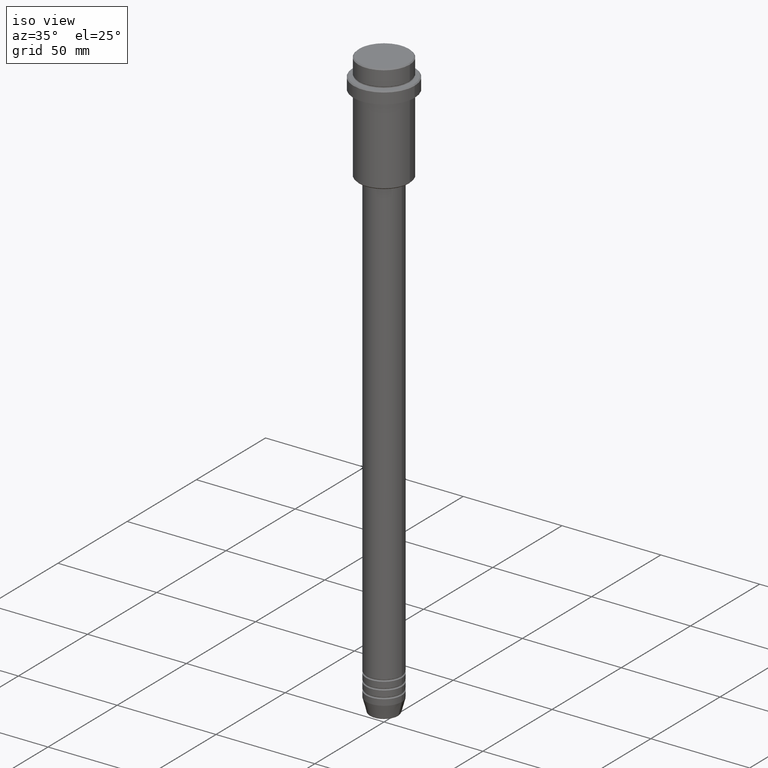
[diagram: clean part render]
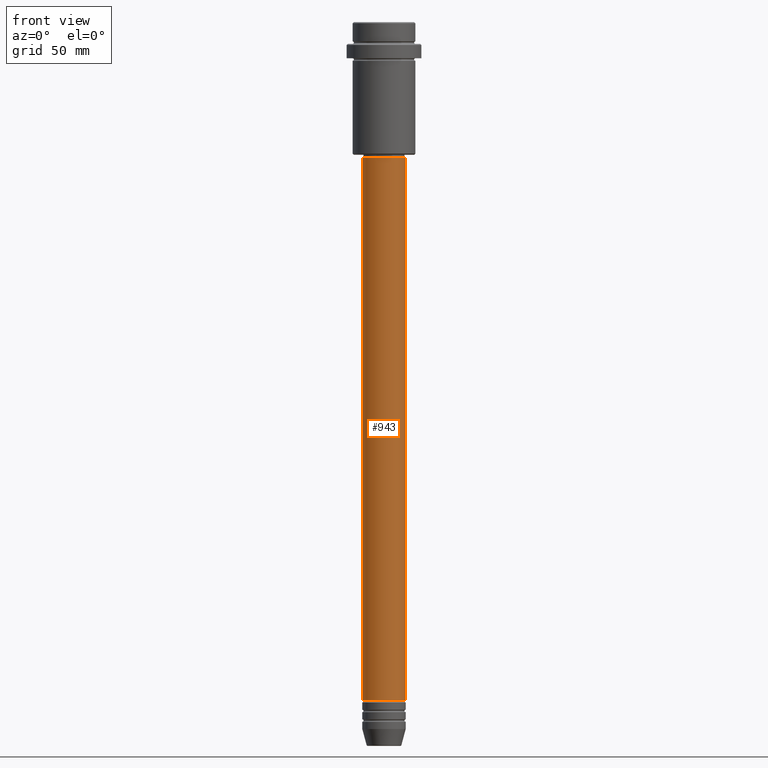
[diagram: tour spotlight — one face highlighted and labeled with its STEP entity id]
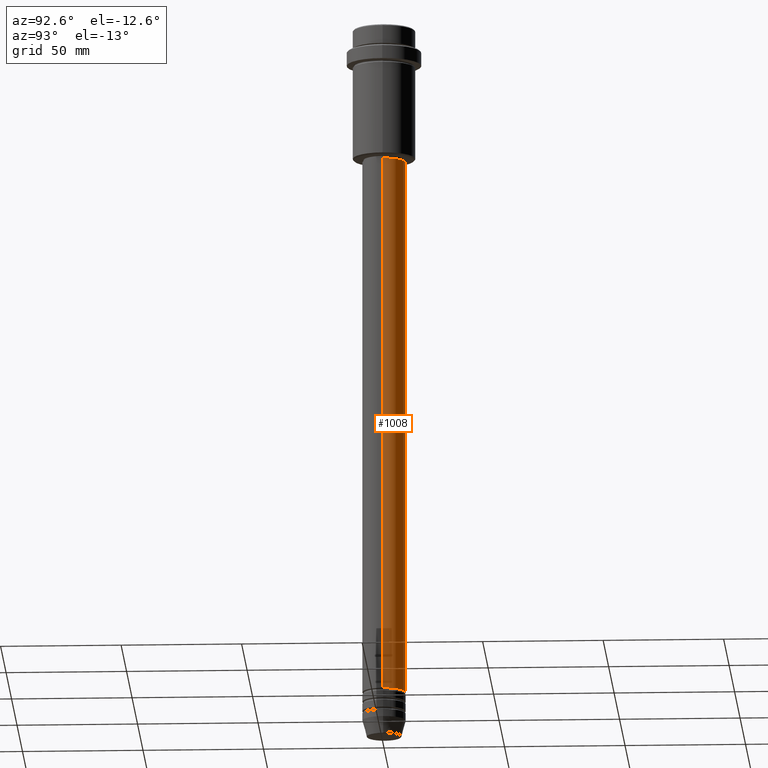
[diagram: tour spotlight — one face highlighted and labeled with its STEP entity id]
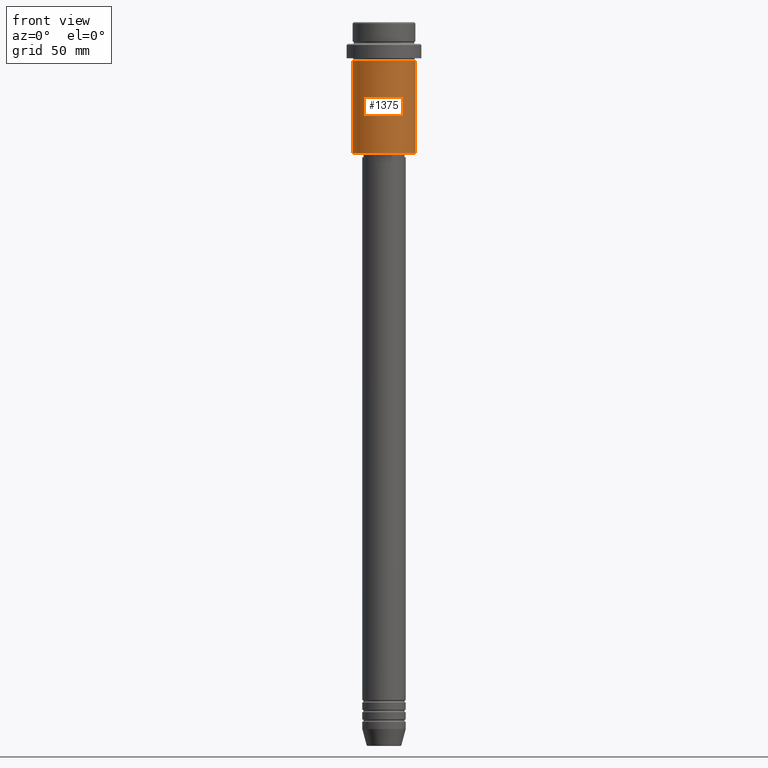
[diagram: tour spotlight — one face highlighted and labeled with its STEP entity id]
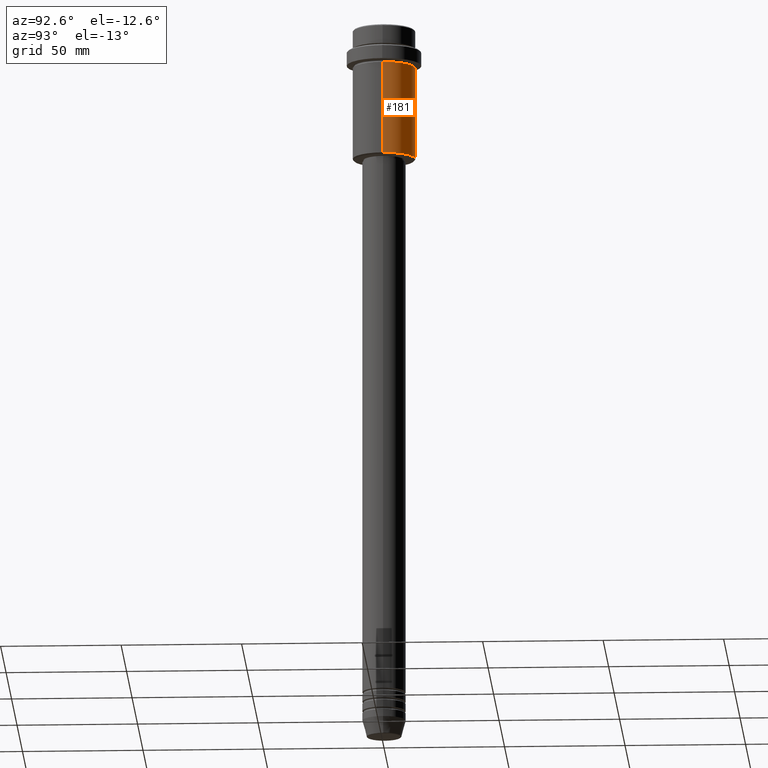
[diagram: tour spotlight — one face highlighted and labeled with its STEP entity id]
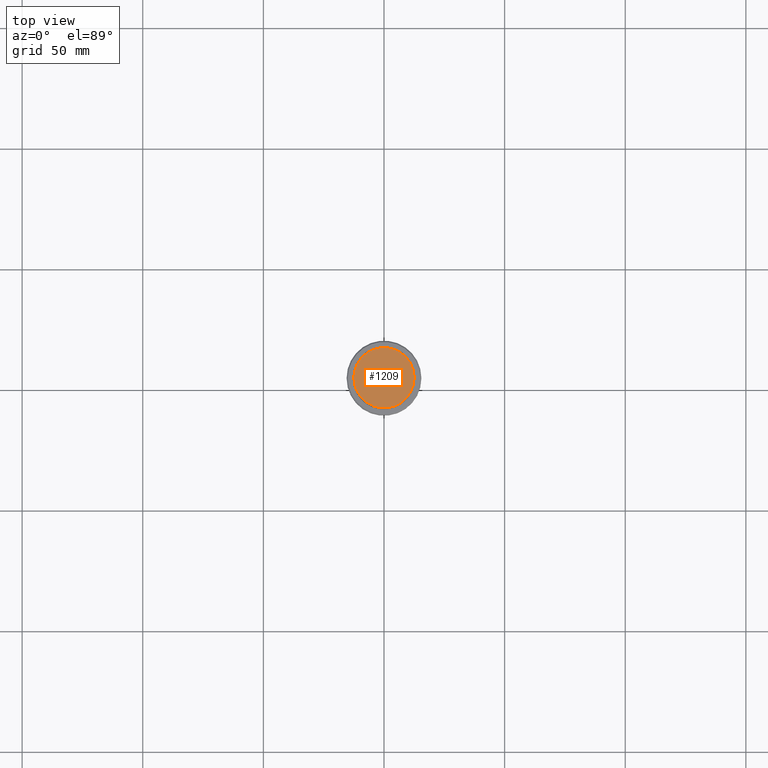
[diagram: tour spotlight — one face highlighted and labeled with its STEP entity id]
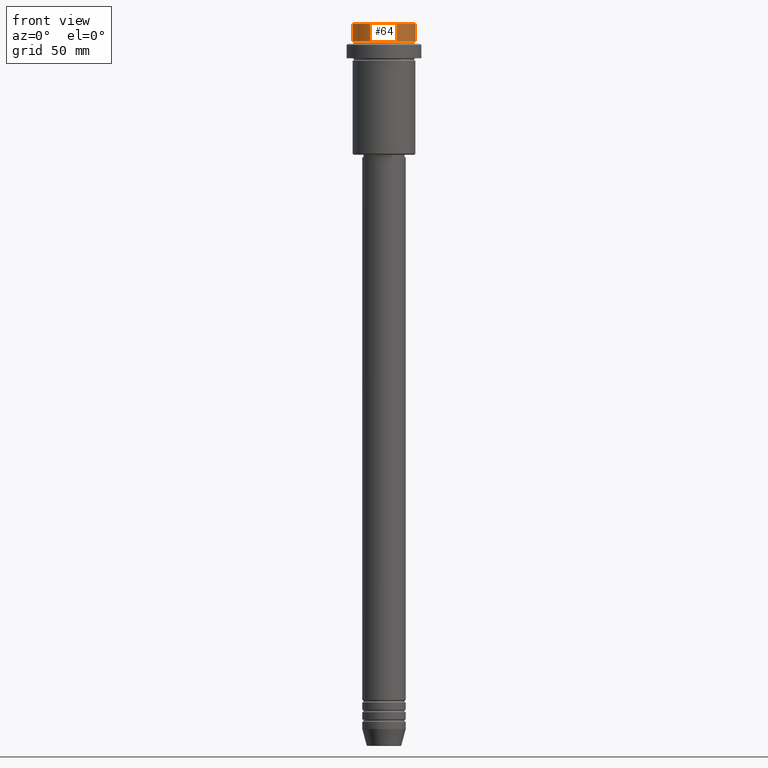
[diagram: tour spotlight — one face highlighted and labeled with its STEP entity id]
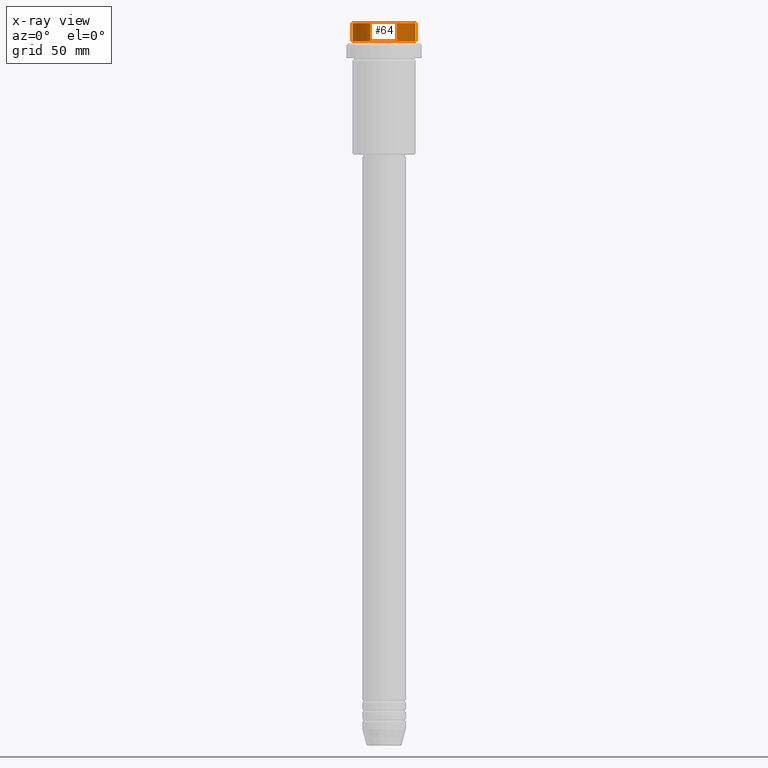
[diagram: x-ray of the same camera — body ghosted, this tour face saturated]
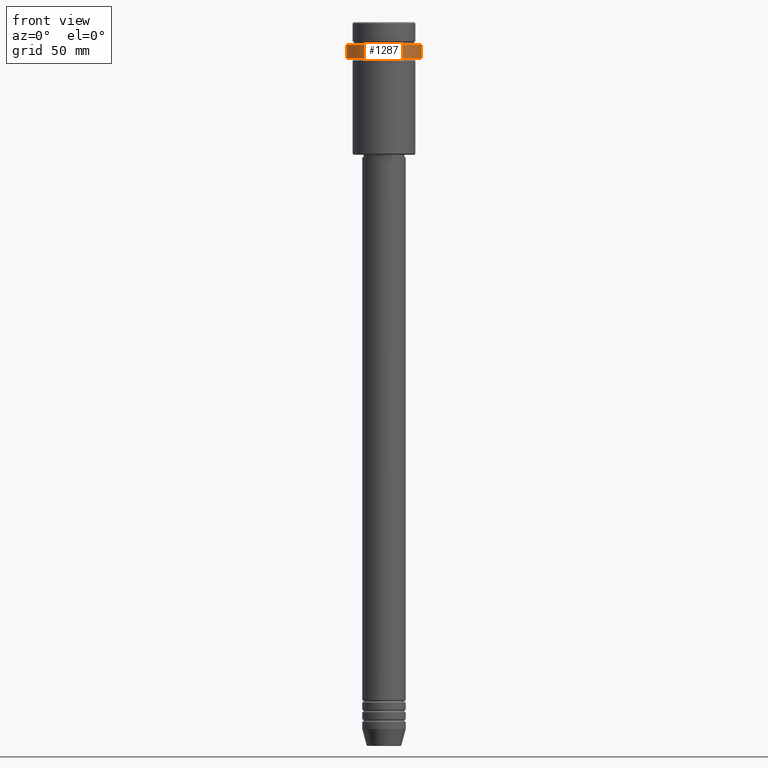
[diagram: tour spotlight — one face highlighted and labeled with its STEP entity id]
A machine part: a face-by-face anatomy tour. The part has 52 B-rep faces; the first image is the clean iso view, then the 7 largest visible faces are spotlighted one at a time (largest first), each with its STEP entity span.

Face 1 — front view, entity #943. In plain terms, the highlighted cylindrical surface (edge-blend (fillet) strip) has radius 9 mm, axis along (-0, -0, 1).
Definition (entity closure, byte-faithful):
#68 = CARTESIAN_POINT ( 'NONE',  ( 0.000000000000000000, 0.000000000000000000, -280.9999999999998863 ) ) ;
#171 = EDGE_CURVE ( 'NONE', #533, #1215, #800, .T. ) ;
#203 = CARTESIAN_POINT ( 'NONE',  ( -9.000000000000001776, 1.102182119232617911E-15, 0.000000000000000000 ) ) ;
#214 = CARTESIAN_POINT ( 'NONE',  ( 9.000000000000001776, 0.000000000000000000, -55.99999999999990763 ) ) ;
#257 = CARTESIAN_POINT ( 'NONE',  ( 9.000000000000001776, 0.000000000000000000, 0.000000000000000000 ) ) ;
#280 = DIRECTION ( 'NONE',  ( -0.000000000000000000, -0.000000000000000000, 1.000000000000000000 ) ) ;
#310 = DIRECTION ( 'NONE',  ( -0.000000000000000000, -0.000000000000000000, 1.000000000000000000 ) ) ;
#340 = CIRCLE ( 'NONE', #807, 9.000000000000001776 ) ;
#341 = EDGE_CURVE ( 'NONE', #533, #1382, #947, .T. ) ;
#348 = EDGE_LOOP ( 'NONE', ( #1079, #1354, #910, #1405 ) ) ;
#366 = EDGE_CURVE ( 'NONE', #1382, #1139, #1273, .T. ) ;
#484 = DIRECTION ( 'NONE',  ( -0.000000000000000000, -0.000000000000000000, 1.000000000000000000 ) ) ;
#487 = DIRECTION ( 'NONE',  ( 1.000000000000000000, 0.000000000000000000, 0.000000000000000000 ) ) ;
#501 = CARTESIAN_POINT ( 'NONE',  ( 0.000000000000000000, 0.000000000000000000, 0.000000000000000000 ) ) ;
#533 = VERTEX_POINT ( 'NONE', #624 ) ;
#624 = CARTESIAN_POINT ( 'NONE',  ( -9.000000000000000000, 1.102182119232617714E-15, -280.9999999999998863 ) ) ;
#715 = DIRECTION ( 'NONE',  ( 1.000000000000000000, 0.000000000000000000, 0.000000000000000000 ) ) ;
#742 = CARTESIAN_POINT ( 'NONE',  ( 9.000000000000000000, 0.000000000000000000, -280.9999999999998863 ) ) ;
#771 = EDGE_CURVE ( 'NONE', #1215, #1139, #340, .T. ) ;
#788 = AXIS2_PLACEMENT_3D ( 'NONE', #501, #853, #1071 ) ;
#800 = LINE ( 'NONE', #203, #1239 ) ;
#807 = AXIS2_PLACEMENT_3D ( 'NONE', #1363, #941, #715 ) ;
#841 = CYLINDRICAL_SURFACE ( 'NONE', #788, 9.000000000000001776 ) ;
#853 = DIRECTION ( 'NONE',  ( -0.000000000000000000, -0.000000000000000000, 1.000000000000000000 ) ) ;
#857 = FACE_OUTER_BOUND ( 'NONE', #348, .T. ) ;
#910 = ORIENTED_EDGE ( 'NONE', *, *, #366, .T. ) ;
#941 = DIRECTION ( 'NONE',  ( -0.000000000000000000, -0.000000000000000000, 1.000000000000000000 ) ) ;
#943 = ADVANCED_FACE ( 'NONE', ( #857 ), #841, .T. ) ;
#947 = CIRCLE ( 'NONE', #1108, 9.000000000000000000 ) ;
#1071 = DIRECTION ( 'NONE',  ( 1.000000000000000000, 0.000000000000000000, 0.000000000000000000 ) ) ;
#1079 = ORIENTED_EDGE ( 'NONE', *, *, #171, .F. ) ;
#1108 = AXIS2_PLACEMENT_3D ( 'NONE', #68, #484, #487 ) ;
#1134 = CARTESIAN_POINT ( 'NONE',  ( -9.000000000000001776, 1.102182119232617911E-15, -55.99999999999990763 ) ) ;
#1139 = VERTEX_POINT ( 'NONE', #214 ) ;
#1215 = VERTEX_POINT ( 'NONE', #1134 ) ;
#1239 = VECTOR ( 'NONE', #310, 1000.000000000000000 ) ;
#1273 = LINE ( 'NONE', #257, #1288 ) ;
#1288 = VECTOR ( 'NONE', #280, 1000.000000000000000 ) ;
#1354 = ORIENTED_EDGE ( 'NONE', *, *, #341, .T. ) ;
#1363 = CARTESIAN_POINT ( 'NONE',  ( 0.000000000000000000, 0.000000000000000000, -55.99999999999990763 ) ) ;
#1382 = VERTEX_POINT ( 'NONE', #742 ) ;
#1405 = ORIENTED_EDGE ( 'NONE', *, *, #771, .F. ) ;

Face 2 — auxiliary view, entity #1008. In plain terms, the highlighted cylindrical surface (edge-blend (fillet) strip) has radius 9 mm, axis along (-0, -0, 1).
Definition (entity closure, byte-faithful):
#72 = CIRCLE ( 'NONE', #805, 9.000000000000001776 ) ;
#115 = CYLINDRICAL_SURFACE ( 'NONE', #274, 9.000000000000001776 ) ;
#123 = CARTESIAN_POINT ( 'NONE',  ( 0.000000000000000000, 0.000000000000000000, 0.000000000000000000 ) ) ;
#155 = DIRECTION ( 'NONE',  ( 1.000000000000000000, 0.000000000000000000, 0.000000000000000000 ) ) ;
#171 = EDGE_CURVE ( 'NONE', #533, #1215, #800, .T. ) ;
#182 = CARTESIAN_POINT ( 'NONE',  ( 0.000000000000000000, 0.000000000000000000, -280.9999999999998863 ) ) ;
#203 = CARTESIAN_POINT ( 'NONE',  ( -9.000000000000001776, 1.102182119232617911E-15, 0.000000000000000000 ) ) ;
#214 = CARTESIAN_POINT ( 'NONE',  ( 9.000000000000001776, 0.000000000000000000, -55.99999999999990763 ) ) ;
#257 = CARTESIAN_POINT ( 'NONE',  ( 9.000000000000001776, 0.000000000000000000, 0.000000000000000000 ) ) ;
#274 = AXIS2_PLACEMENT_3D ( 'NONE', #123, #992, #782 ) ;
#280 = DIRECTION ( 'NONE',  ( -0.000000000000000000, -0.000000000000000000, 1.000000000000000000 ) ) ;
#310 = DIRECTION ( 'NONE',  ( -0.000000000000000000, -0.000000000000000000, 1.000000000000000000 ) ) ;
#355 = EDGE_CURVE ( 'NONE', #1139, #1215, #72, .T. ) ;
#366 = EDGE_CURVE ( 'NONE', #1382, #1139, #1273, .T. ) ;
#414 = ORIENTED_EDGE ( 'NONE', *, *, #355, .F. ) ;
#521 = AXIS2_PLACEMENT_3D ( 'NONE', #182, #626, #956 ) ;
#533 = VERTEX_POINT ( 'NONE', #624 ) ;
#560 = ORIENTED_EDGE ( 'NONE', *, *, #171, .T. ) ;
#624 = CARTESIAN_POINT ( 'NONE',  ( -9.000000000000000000, 1.102182119232617714E-15, -280.9999999999998863 ) ) ;
#626 = DIRECTION ( 'NONE',  ( -0.000000000000000000, -0.000000000000000000, 1.000000000000000000 ) ) ;
#742 = CARTESIAN_POINT ( 'NONE',  ( 9.000000000000000000, 0.000000000000000000, -280.9999999999998863 ) ) ;
#762 = CIRCLE ( 'NONE', #521, 9.000000000000000000 ) ;
#782 = DIRECTION ( 'NONE',  ( 1.000000000000000000, 0.000000000000000000, 0.000000000000000000 ) ) ;
#800 = LINE ( 'NONE', #203, #1239 ) ;
#805 = AXIS2_PLACEMENT_3D ( 'NONE', #832, #1371, #155 ) ;
#832 = CARTESIAN_POINT ( 'NONE',  ( 0.000000000000000000, 0.000000000000000000, -55.99999999999990763 ) ) ;
#956 = DIRECTION ( 'NONE',  ( 1.000000000000000000, 0.000000000000000000, 0.000000000000000000 ) ) ;
#965 = ORIENTED_EDGE ( 'NONE', *, *, #366, .F. ) ;
#992 = DIRECTION ( 'NONE',  ( -0.000000000000000000, -0.000000000000000000, 1.000000000000000000 ) ) ;
#1008 = ADVANCED_FACE ( 'NONE', ( #1103 ), #115, .T. ) ;
#1087 = ORIENTED_EDGE ( 'NONE', *, *, #1320, .T. ) ;
#1103 = FACE_OUTER_BOUND ( 'NONE', #1172, .T. ) ;
#1134 = CARTESIAN_POINT ( 'NONE',  ( -9.000000000000001776, 1.102182119232617911E-15, -55.99999999999990763 ) ) ;
#1139 = VERTEX_POINT ( 'NONE', #214 ) ;
#1172 = EDGE_LOOP ( 'NONE', ( #1087, #560, #414, #965 ) ) ;
#1215 = VERTEX_POINT ( 'NONE', #1134 ) ;
#1239 = VECTOR ( 'NONE', #310, 1000.000000000000000 ) ;
#1273 = LINE ( 'NONE', #257, #1288 ) ;
#1288 = VECTOR ( 'NONE', #280, 1000.000000000000000 ) ;
#1320 = EDGE_CURVE ( 'NONE', #1382, #533, #762, .T. ) ;
#1371 = DIRECTION ( 'NONE',  ( -0.000000000000000000, -0.000000000000000000, 1.000000000000000000 ) ) ;
#1382 = VERTEX_POINT ( 'NONE', #742 ) ;

Face 3 — front view, entity #1375. In plain terms, the highlighted cylindrical surface (edge-blend (fillet) strip) has radius 13 mm, axis along (-0, -0, 1).
Definition (entity closure, byte-faithful):
#54 = DIRECTION ( 'NONE',  ( 1.000000000000000000, 0.000000000000000000, 0.000000000000000000 ) ) ;
#79 = DIRECTION ( 'NONE',  ( 1.000000000000000000, 0.000000000000000000, 0.000000000000000000 ) ) ;
#136 = VERTEX_POINT ( 'NONE', #242 ) ;
#183 = DIRECTION ( 'NONE',  ( -0.000000000000000000, -0.000000000000000000, 1.000000000000000000 ) ) ;
#202 = AXIS2_PLACEMENT_3D ( 'NONE', #856, #525, #79 ) ;
#227 = CIRCLE ( 'NONE', #1031, 13.00000000000000000 ) ;
#242 = CARTESIAN_POINT ( 'NONE',  ( -13.00000000000000000, 1.592040838891559095E-15, -54.49999999999997868 ) ) ;
#245 = EDGE_CURVE ( 'NONE', #136, #739, #1022, .T. ) ;
#264 = EDGE_CURVE ( 'NONE', #136, #1183, #227, .T. ) ;
#266 = CARTESIAN_POINT ( 'NONE',  ( -13.00000000000000000, 1.592040838891559095E-15, -16.00000000000000000 ) ) ;
#283 = CYLINDRICAL_SURFACE ( 'NONE', #202, 13.00000000000000000 ) ;
#335 = VECTOR ( 'NONE', #524, 1000.000000000000000 ) ;
#370 = CARTESIAN_POINT ( 'NONE',  ( 0.000000000000000000, 0.000000000000000000, -16.00000000000000000 ) ) ;
#376 = DIRECTION ( 'NONE',  ( -0.000000000000000000, -0.000000000000000000, 1.000000000000000000 ) ) ;
#470 = ORIENTED_EDGE ( 'NONE', *, *, #1266, .F. ) ;
#498 = VERTEX_POINT ( 'NONE', #960 ) ;
#524 = DIRECTION ( 'NONE',  ( -0.000000000000000000, -0.000000000000000000, 1.000000000000000000 ) ) ;
#525 = DIRECTION ( 'NONE',  ( -0.000000000000000000, -0.000000000000000000, 1.000000000000000000 ) ) ;
#637 = CARTESIAN_POINT ( 'NONE',  ( -13.00000000000000000, 1.592040838891559095E-15, 0.000000000000000000 ) ) ;
#667 = ORIENTED_EDGE ( 'NONE', *, *, #245, .F. ) ;
#683 = DIRECTION ( 'NONE',  ( -0.000000000000000000, -0.000000000000000000, 1.000000000000000000 ) ) ;
#739 = VERTEX_POINT ( 'NONE', #266 ) ;
#743 = LINE ( 'NONE', #867, #1362 ) ;
#856 = CARTESIAN_POINT ( 'NONE',  ( 0.000000000000000000, 0.000000000000000000, 0.000000000000000000 ) ) ;
#867 = CARTESIAN_POINT ( 'NONE',  ( 13.00000000000000000, 0.000000000000000000, 0.000000000000000000 ) ) ;
#960 = CARTESIAN_POINT ( 'NONE',  ( 13.00000000000000000, 0.000000000000000000, -16.00000000000000000 ) ) ;
#970 = AXIS2_PLACEMENT_3D ( 'NONE', #370, #683, #54 ) ;
#991 = EDGE_CURVE ( 'NONE', #1183, #498, #743, .T. ) ;
#1022 = LINE ( 'NONE', #637, #335 ) ;
#1031 = AXIS2_PLACEMENT_3D ( 'NONE', #1374, #376, #1268 ) ;
#1090 = ORIENTED_EDGE ( 'NONE', *, *, #264, .T. ) ;
#1167 = FACE_OUTER_BOUND ( 'NONE', #1214, .T. ) ;
#1168 = ORIENTED_EDGE ( 'NONE', *, *, #991, .T. ) ;
#1183 = VERTEX_POINT ( 'NONE', #1241 ) ;
#1214 = EDGE_LOOP ( 'NONE', ( #667, #1090, #1168, #470 ) ) ;
#1241 = CARTESIAN_POINT ( 'NONE',  ( 13.00000000000000000, 0.000000000000000000, -54.49999999999997868 ) ) ;
#1266 = EDGE_CURVE ( 'NONE', #739, #498, #1404, .T. ) ;
#1268 = DIRECTION ( 'NONE',  ( -1.000000000000000000, 0.000000000000000000, 0.000000000000000000 ) ) ;
#1362 = VECTOR ( 'NONE', #183, 1000.000000000000000 ) ;
#1374 = CARTESIAN_POINT ( 'NONE',  ( 0.000000000000000000, 0.000000000000000000, -54.49999999999997868 ) ) ;
#1375 = ADVANCED_FACE ( 'NONE', ( #1167 ), #283, .T. ) ;
#1404 = CIRCLE ( 'NONE', #970, 13.00000000000000000 ) ;

Face 4 — auxiliary view, entity #181. In plain terms, the highlighted cylindrical surface (edge-blend (fillet) strip) has radius 13 mm, axis along (-0, -0, 1).
Definition (entity closure, byte-faithful):
#20 = ORIENTED_EDGE ( 'NONE', *, *, #245, .T. ) ;
#114 = FACE_OUTER_BOUND ( 'NONE', #551, .T. ) ;
#136 = VERTEX_POINT ( 'NONE', #242 ) ;
#140 = AXIS2_PLACEMENT_3D ( 'NONE', #1325, #1105, #1224 ) ;
#181 = ADVANCED_FACE ( 'NONE', ( #114 ), #795, .T. ) ;
#183 = DIRECTION ( 'NONE',  ( -0.000000000000000000, -0.000000000000000000, 1.000000000000000000 ) ) ;
#242 = CARTESIAN_POINT ( 'NONE',  ( -13.00000000000000000, 1.592040838891559095E-15, -54.49999999999997868 ) ) ;
#245 = EDGE_CURVE ( 'NONE', #136, #739, #1022, .T. ) ;
#255 = EDGE_CURVE ( 'NONE', #498, #739, #1399, .T. ) ;
#266 = CARTESIAN_POINT ( 'NONE',  ( -13.00000000000000000, 1.592040838891559095E-15, -16.00000000000000000 ) ) ;
#271 = CIRCLE ( 'NONE', #140, 13.00000000000000000 ) ;
#335 = VECTOR ( 'NONE', #524, 1000.000000000000000 ) ;
#347 = CARTESIAN_POINT ( 'NONE',  ( 0.000000000000000000, 0.000000000000000000, 0.000000000000000000 ) ) ;
#498 = VERTEX_POINT ( 'NONE', #960 ) ;
#524 = DIRECTION ( 'NONE',  ( -0.000000000000000000, -0.000000000000000000, 1.000000000000000000 ) ) ;
#551 = EDGE_LOOP ( 'NONE', ( #696, #20, #1064, #847 ) ) ;
#636 = AXIS2_PLACEMENT_3D ( 'NONE', #347, #1230, #682 ) ;
#637 = CARTESIAN_POINT ( 'NONE',  ( -13.00000000000000000, 1.592040838891559095E-15, 0.000000000000000000 ) ) ;
#659 = EDGE_CURVE ( 'NONE', #1183, #136, #271, .T. ) ;
#682 = DIRECTION ( 'NONE',  ( 1.000000000000000000, 0.000000000000000000, 0.000000000000000000 ) ) ;
#696 = ORIENTED_EDGE ( 'NONE', *, *, #659, .T. ) ;
#739 = VERTEX_POINT ( 'NONE', #266 ) ;
#743 = LINE ( 'NONE', #867, #1362 ) ;
#795 = CYLINDRICAL_SURFACE ( 'NONE', #636, 13.00000000000000000 ) ;
#846 = AXIS2_PLACEMENT_3D ( 'NONE', #864, #1305, #942 ) ;
#847 = ORIENTED_EDGE ( 'NONE', *, *, #991, .F. ) ;
#864 = CARTESIAN_POINT ( 'NONE',  ( 0.000000000000000000, 0.000000000000000000, -16.00000000000000000 ) ) ;
#867 = CARTESIAN_POINT ( 'NONE',  ( 13.00000000000000000, 0.000000000000000000, 0.000000000000000000 ) ) ;
#942 = DIRECTION ( 'NONE',  ( 1.000000000000000000, 0.000000000000000000, 0.000000000000000000 ) ) ;
#960 = CARTESIAN_POINT ( 'NONE',  ( 13.00000000000000000, 0.000000000000000000, -16.00000000000000000 ) ) ;
#991 = EDGE_CURVE ( 'NONE', #1183, #498, #743, .T. ) ;
#1022 = LINE ( 'NONE', #637, #335 ) ;
#1064 = ORIENTED_EDGE ( 'NONE', *, *, #255, .F. ) ;
#1105 = DIRECTION ( 'NONE',  ( -0.000000000000000000, -0.000000000000000000, 1.000000000000000000 ) ) ;
#1183 = VERTEX_POINT ( 'NONE', #1241 ) ;
#1224 = DIRECTION ( 'NONE',  ( -1.000000000000000000, 0.000000000000000000, 0.000000000000000000 ) ) ;
#1230 = DIRECTION ( 'NONE',  ( -0.000000000000000000, -0.000000000000000000, 1.000000000000000000 ) ) ;
#1241 = CARTESIAN_POINT ( 'NONE',  ( 13.00000000000000000, 0.000000000000000000, -54.49999999999997868 ) ) ;
#1305 = DIRECTION ( 'NONE',  ( -0.000000000000000000, -0.000000000000000000, 1.000000000000000000 ) ) ;
#1325 = CARTESIAN_POINT ( 'NONE',  ( 0.000000000000000000, 0.000000000000000000, -54.49999999999997868 ) ) ;
#1362 = VECTOR ( 'NONE', #183, 1000.000000000000000 ) ;
#1399 = CIRCLE ( 'NONE', #846, 13.00000000000000000 ) ;

Face 5 — top view, entity #1209. In plain terms, the highlighted planar face has unit normal (0, -0, 1).
Definition (entity closure, byte-faithful):
#62 = CARTESIAN_POINT ( 'NONE',  ( 0.000000000000000000, 0.000000000000000000, 0.000000000000000000 ) ) ;
#76 = DIRECTION ( 'NONE',  ( 1.000000000000000000, 0.000000000000000000, 0.000000000000000000 ) ) ;
#125 = ORIENTED_EDGE ( 'NONE', *, *, #761, .T. ) ;
#143 = DIRECTION ( 'NONE',  ( 0.000000000000000000, -0.000000000000000000, 1.000000000000000000 ) ) ;
#153 = CARTESIAN_POINT ( 'NONE',  ( 0.000000000000000000, 0.000000000000000000, 0.000000000000000000 ) ) ;
#157 = AXIS2_PLACEMENT_3D ( 'NONE', #1162, #497, #76 ) ;
#159 = FACE_OUTER_BOUND ( 'NONE', #1191, .T. ) ;
#198 = AXIS2_PLACEMENT_3D ( 'NONE', #62, #482, #278 ) ;
#252 = PLANE ( 'NONE',  #1195 ) ;
#272 = EDGE_CURVE ( 'NONE', #465, #1356, #400, .T. ) ;
#278 = DIRECTION ( 'NONE',  ( 1.000000000000000000, 0.000000000000000000, 0.000000000000000000 ) ) ;
#397 = ORIENTED_EDGE ( 'NONE', *, *, #272, .T. ) ;
#400 = CIRCLE ( 'NONE', #157, 12.49999999999998579 ) ;
#465 = VERTEX_POINT ( 'NONE', #861 ) ;
#475 = DIRECTION ( 'NONE',  ( 1.000000000000000000, 0.000000000000000000, 0.000000000000000000 ) ) ;
#482 = DIRECTION ( 'NONE',  ( -0.000000000000000000, -0.000000000000000000, 1.000000000000000000 ) ) ;
#497 = DIRECTION ( 'NONE',  ( -0.000000000000000000, -0.000000000000000000, 1.000000000000000000 ) ) ;
#542 = CIRCLE ( 'NONE', #198, 12.49999999999998579 ) ;
#761 = EDGE_CURVE ( 'NONE', #1356, #465, #542, .T. ) ;
#850 = CARTESIAN_POINT ( 'NONE',  ( 12.49999999999998579, 1.561424668912874125E-15, 0.000000000000000000 ) ) ;
#861 = CARTESIAN_POINT ( 'NONE',  ( -12.49999999999998579, 0.000000000000000000, 0.000000000000000000 ) ) ;
#1162 = CARTESIAN_POINT ( 'NONE',  ( 0.000000000000000000, 0.000000000000000000, 0.000000000000000000 ) ) ;
#1191 = EDGE_LOOP ( 'NONE', ( #397, #125 ) ) ;
#1195 = AXIS2_PLACEMENT_3D ( 'NONE', #153, #143, #475 ) ;
#1209 = ADVANCED_FACE ( 'NONE', ( #159 ), #252, .T. ) ;
#1356 = VERTEX_POINT ( 'NONE', #850 ) ;

Face 6 — front view, entity #64. An x-ray twin of the same camera follows (body ghosted, this face saturated) — the face is partly hidden behind the body. In plain terms, the highlighted cylindrical surface (edge-blend (fillet) strip) has radius 13 mm, axis along (-0, -0, 1).
Definition (entity closure, byte-faithful):
#44 = CARTESIAN_POINT ( 'NONE',  ( 12.99999999999999822, 0.000000000000000000, -0.5000000000000316414 ) ) ;
#64 = ADVANCED_FACE ( 'NONE', ( #547 ), #1099, .T. ) ;
#88 = DIRECTION ( 'NONE',  ( 1.000000000000000000, 0.000000000000000000, 0.000000000000000000 ) ) ;
#89 = ORIENTED_EDGE ( 'NONE', *, *, #581, .F. ) ;
#112 = CARTESIAN_POINT ( 'NONE',  ( 0.000000000000000000, 0.000000000000000000, 0.000000000000000000 ) ) ;
#190 = VERTEX_POINT ( 'NONE', #44 ) ;
#195 = VECTOR ( 'NONE', #199, 1000.000000000000000 ) ;
#199 = DIRECTION ( 'NONE',  ( -0.000000000000000000, -0.000000000000000000, 1.000000000000000000 ) ) ;
#219 = ORIENTED_EDGE ( 'NONE', *, *, #939, .T. ) ;
#268 = AXIS2_PLACEMENT_3D ( 'NONE', #112, #298, #646 ) ;
#286 = CARTESIAN_POINT ( 'NONE',  ( 0.000000000000000000, 0.000000000000000000, -0.5000000000000316414 ) ) ;
#298 = DIRECTION ( 'NONE',  ( -0.000000000000000000, -0.000000000000000000, 1.000000000000000000 ) ) ;
#406 = DIRECTION ( 'NONE',  ( 0.000000000000000000, 0.000000000000000000, -1.000000000000000000 ) ) ;
#434 = CARTESIAN_POINT ( 'NONE',  ( -12.99999999999999822, 1.592040838891558898E-15, -0.5000000000000316414 ) ) ;
#478 = EDGE_CURVE ( 'NONE', #1408, #190, #1088, .T. ) ;
#491 = EDGE_CURVE ( 'NONE', #190, #1028, #927, .T. ) ;
#496 = CARTESIAN_POINT ( 'NONE',  ( 0.000000000000000000, 0.000000000000000000, -7.999999999999998224 ) ) ;
#547 = FACE_OUTER_BOUND ( 'NONE', #1409, .T. ) ;
#557 = CARTESIAN_POINT ( 'NONE',  ( -12.99999999999999822, 1.592040838891558898E-15, 0.000000000000000000 ) ) ;
#575 = DIRECTION ( 'NONE',  ( -0.000000000000000000, -0.000000000000000000, 1.000000000000000000 ) ) ;
#581 = EDGE_CURVE ( 'NONE', #794, #1028, #665, .T. ) ;
#628 = DIRECTION ( 'NONE',  ( -0.000000000000000000, -0.000000000000000000, 1.000000000000000000 ) ) ;
#646 = DIRECTION ( 'NONE',  ( 1.000000000000000000, 0.000000000000000000, 0.000000000000000000 ) ) ;
#665 = LINE ( 'NONE', #557, #1035 ) ;
#747 = CARTESIAN_POINT ( 'NONE',  ( 12.99999999999999822, 0.000000000000000000, -7.999999999999998224 ) ) ;
#794 = VERTEX_POINT ( 'NONE', #1253 ) ;
#827 = AXIS2_PLACEMENT_3D ( 'NONE', #496, #628, #1284 ) ;
#920 = ORIENTED_EDGE ( 'NONE', *, *, #478, .T. ) ;
#927 = CIRCLE ( 'NONE', #1009, 12.99999999999999822 ) ;
#939 = EDGE_CURVE ( 'NONE', #794, #1408, #1312, .T. ) ;
#1009 = AXIS2_PLACEMENT_3D ( 'NONE', #286, #406, #88 ) ;
#1028 = VERTEX_POINT ( 'NONE', #434 ) ;
#1035 = VECTOR ( 'NONE', #575, 1000.000000000000000 ) ;
#1088 = LINE ( 'NONE', #1184, #195 ) ;
#1098 = ORIENTED_EDGE ( 'NONE', *, *, #491, .T. ) ;
#1099 = CYLINDRICAL_SURFACE ( 'NONE', #268, 12.99999999999999822 ) ;
#1184 = CARTESIAN_POINT ( 'NONE',  ( 12.99999999999999822, 0.000000000000000000, 0.000000000000000000 ) ) ;
#1253 = CARTESIAN_POINT ( 'NONE',  ( -12.99999999999999822, 1.592040838891558898E-15, -7.999999999999998224 ) ) ;
#1284 = DIRECTION ( 'NONE',  ( 1.000000000000000000, 0.000000000000000000, 0.000000000000000000 ) ) ;
#1312 = CIRCLE ( 'NONE', #827, 12.99999999999999822 ) ;
#1408 = VERTEX_POINT ( 'NONE', #747 ) ;
#1409 = EDGE_LOOP ( 'NONE', ( #89, #219, #920, #1098 ) ) ;

Face 7 — front view, entity #1287. In plain terms, the highlighted cylindrical surface (partial cylindrical patch) has radius 15.5 mm, axis along (-0, -0, 1).
Definition (entity closure, byte-faithful):
#21 = CARTESIAN_POINT ( 'NONE',  ( 15.50000000000000000, 0.000000000000000000, -9.499999999999984013 ) ) ;
#25 = LINE ( 'NONE', #134, #251 ) ;
#28 = ORIENTED_EDGE ( 'NONE', *, *, #1060, .F. ) ;
#61 = FACE_OUTER_BOUND ( 'NONE', #586, .T. ) ;
#134 = CARTESIAN_POINT ( 'NONE',  ( -15.50000000000000000, 1.898202538678397557E-15, 0.000000000000000000 ) ) ;
#142 = AXIS2_PLACEMENT_3D ( 'NONE', #983, #325, #556 ) ;
#213 = VERTEX_POINT ( 'NONE', #982 ) ;
#220 = EDGE_CURVE ( 'NONE', #523, #213, #246, .T. ) ;
#246 = CIRCLE ( 'NONE', #802, 15.50000000000000000 ) ;
#251 = VECTOR ( 'NONE', #1348, 1000.000000000000000 ) ;
#265 = CARTESIAN_POINT ( 'NONE',  ( 15.50000000000000000, 0.000000000000000000, 0.000000000000000000 ) ) ;
#325 = DIRECTION ( 'NONE',  ( 0.000000000000000000, 0.000000000000000000, -1.000000000000000000 ) ) ;
#330 = ORIENTED_EDGE ( 'NONE', *, *, #1249, .T. ) ;
#481 = CARTESIAN_POINT ( 'NONE',  ( 0.000000000000000000, 0.000000000000000000, 0.000000000000000000 ) ) ;
#485 = DIRECTION ( 'NONE',  ( 1.000000000000000000, 0.000000000000000000, 0.000000000000000000 ) ) ;
#522 = ORIENTED_EDGE ( 'NONE', *, *, #220, .T. ) ;
#523 = VERTEX_POINT ( 'NONE', #1171 ) ;
#556 = DIRECTION ( 'NONE',  ( 1.000000000000000000, 0.000000000000000000, 0.000000000000000000 ) ) ;
#572 = VERTEX_POINT ( 'NONE', #21 ) ;
#586 = EDGE_LOOP ( 'NONE', ( #28, #522, #330, #928 ) ) ;
#802 = AXIS2_PLACEMENT_3D ( 'NONE', #1093, #1004, #1315 ) ;
#812 = DIRECTION ( 'NONE',  ( -0.000000000000000000, -0.000000000000000000, 1.000000000000000000 ) ) ;
#928 = ORIENTED_EDGE ( 'NONE', *, *, #1042, .T. ) ;
#982 = CARTESIAN_POINT ( 'NONE',  ( 15.50000000000000000, 0.000000000000000000, -15.00000000000000000 ) ) ;
#983 = CARTESIAN_POINT ( 'NONE',  ( 0.000000000000000000, 0.000000000000000000, -9.499999999999984013 ) ) ;
#993 = CIRCLE ( 'NONE', #142, 15.50000000000000000 ) ;
#1004 = DIRECTION ( 'NONE',  ( -0.000000000000000000, -0.000000000000000000, 1.000000000000000000 ) ) ;
#1025 = CYLINDRICAL_SURFACE ( 'NONE', #1269, 15.50000000000000000 ) ;
#1042 = EDGE_CURVE ( 'NONE', #572, #1147, #993, .T. ) ;
#1046 = DIRECTION ( 'NONE',  ( -0.000000000000000000, -0.000000000000000000, 1.000000000000000000 ) ) ;
#1060 = EDGE_CURVE ( 'NONE', #523, #1147, #25, .T. ) ;
#1093 = CARTESIAN_POINT ( 'NONE',  ( 0.000000000000000000, 0.000000000000000000, -15.00000000000000000 ) ) ;
#1147 = VERTEX_POINT ( 'NONE', #1154 ) ;
#1154 = CARTESIAN_POINT ( 'NONE',  ( -15.50000000000000000, 1.898202538678397557E-15, -9.499999999999984013 ) ) ;
#1159 = VECTOR ( 'NONE', #812, 1000.000000000000000 ) ;
#1161 = LINE ( 'NONE', #265, #1159 ) ;
#1171 = CARTESIAN_POINT ( 'NONE',  ( -15.50000000000000000, 1.898202538678397557E-15, -15.00000000000000000 ) ) ;
#1249 = EDGE_CURVE ( 'NONE', #213, #572, #1161, .T. ) ;
#1269 = AXIS2_PLACEMENT_3D ( 'NONE', #481, #1046, #485 ) ;
#1287 = ADVANCED_FACE ( 'NONE', ( #61 ), #1025, .T. ) ;
#1315 = DIRECTION ( 'NONE',  ( 1.000000000000000000, 0.000000000000000000, 0.000000000000000000 ) ) ;
#1348 = DIRECTION ( 'NONE',  ( -0.000000000000000000, -0.000000000000000000, 1.000000000000000000 ) ) ;